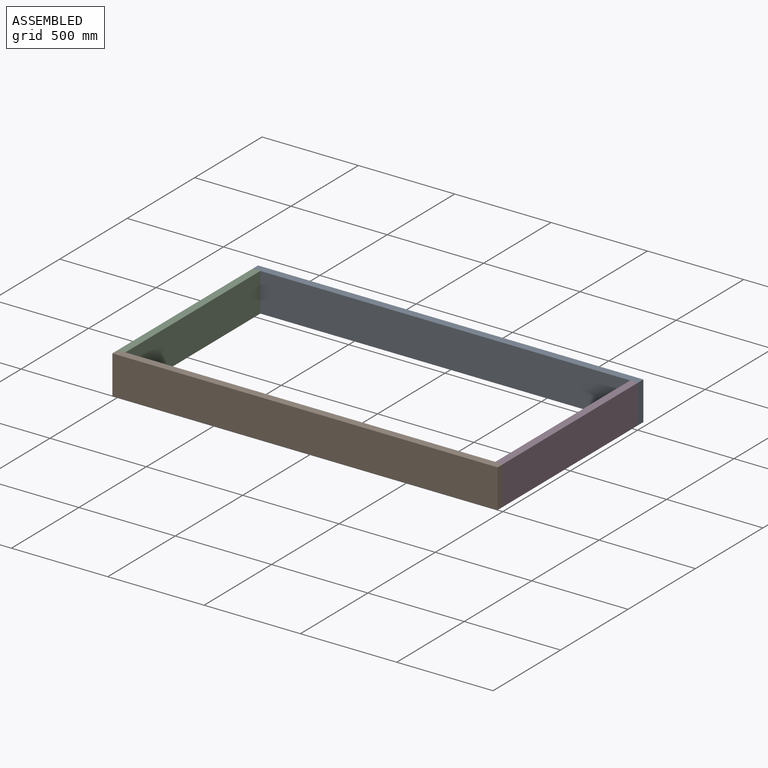
[diagram: assembled view]
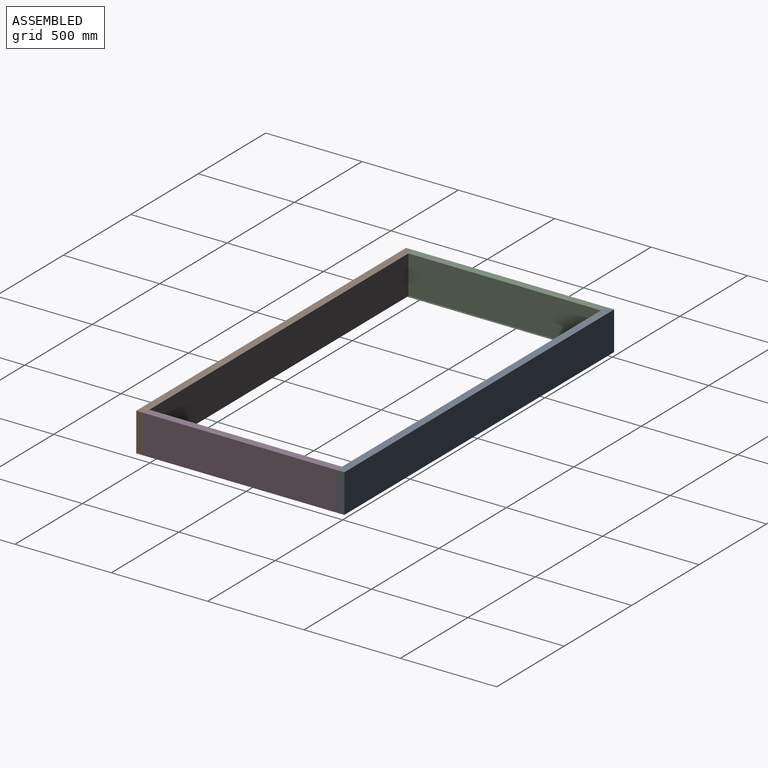
[diagram: assembled view, second angle]
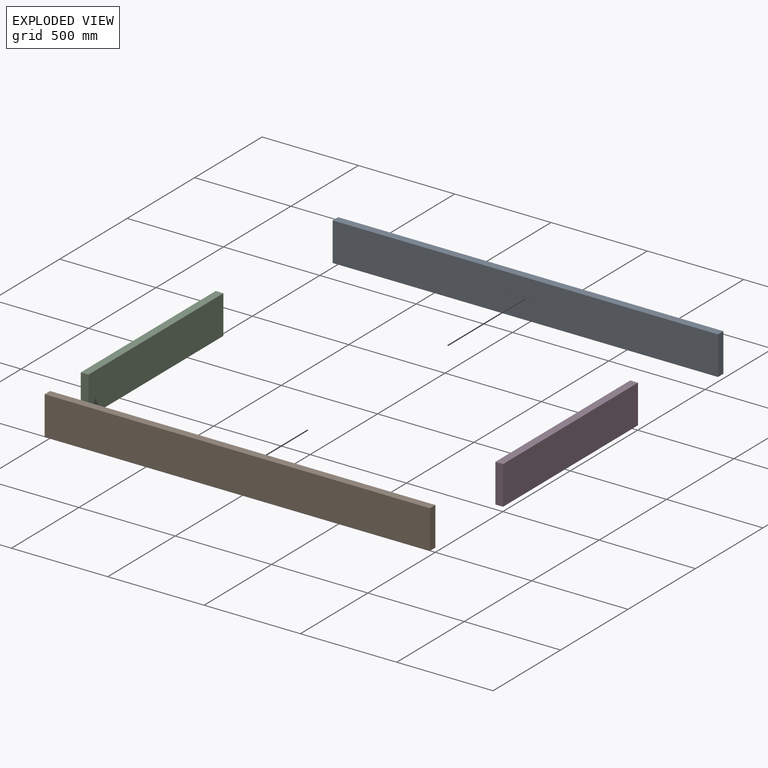
[diagram: exploded view]
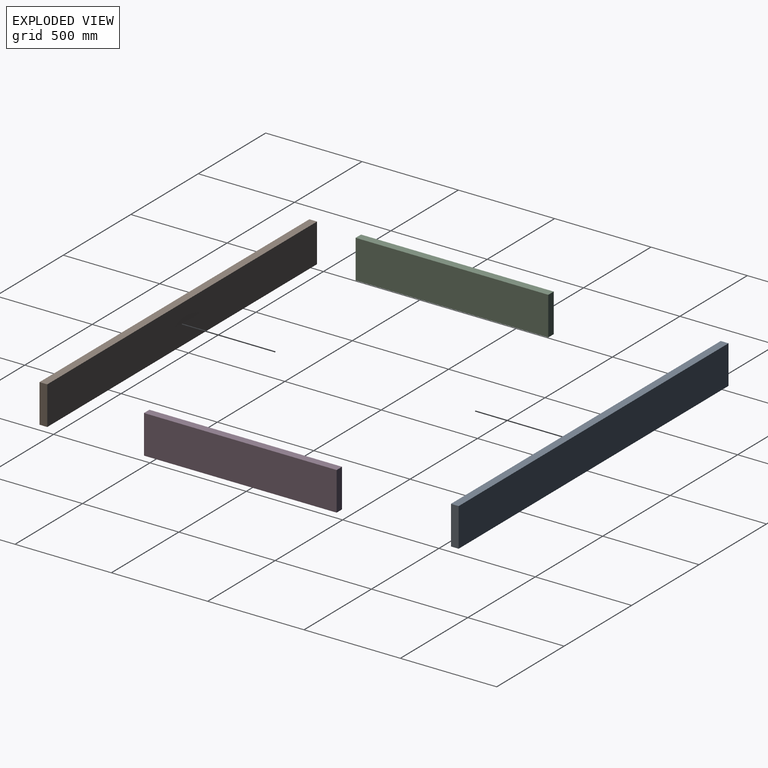
[diagram: exploded view, second angle]
ASSEMBLY  parts=4 mates=3
PART A: 6 faces, bbox 2000x40x200 mm
  f0: plane 2000x40mm, normal (0,0,1), area 80000mm2, adj f1,f3,f4,f5
  f1: plane 200x40mm, normal (-1,0,0), area 8000mm2, adj f0,f2,f4,f5
  f2: plane 2000x40mm, normal (0,0,-1), area 80000mm2, adj f1,f3,f4,f5
  f3: plane 200x40mm, normal (1,0,0), area 8000mm2, adj f0,f2,f4,f5
  f4: plane 2000x200mm, normal (0,-1,0), area 400000mm2, adj f0,f1,f2,f3
  f5: plane 2000x200mm, normal (0,1,0), area 400000mm2, adj f0,f1,f2,f3
PART B: same geometry as A
PART C: 6 faces, bbox 1000x40x200 mm
  f0: plane 1000x40mm, normal (0,0,1), area 40000mm2, adj f1,f3,f4,f5
  f1: plane 200x40mm, normal (-1,0,0), area 8000mm2, adj f0,f2,f4,f5
  f2: plane 1000x40mm, normal (0,0,-1), area 40000mm2, adj f1,f3,f4,f5
  f3: plane 200x40mm, normal (1,0,0), area 8000mm2, adj f0,f2,f4,f5
  f4: plane 1000x200mm, normal (0,-1,0), area 200000mm2, adj f0,f1,f2,f3
  f5: plane 1000x200mm, normal (0,1,0), area 200000mm2, adj f0,f1,f2,f3
PART D: same geometry as C
PLACE A t=(7.39,0,-30.32)mm
PLACE B rot(axis=(1,0,0),180deg) t=(7.39,-1040,-176.03)mm
PLACE C rot(axis=(0,0,-1),90deg) t=(-964.47,-519.55,-102.48)mm
PLACE D rot(axis=(0.71,0.71,0),180deg) t=(995.53,-520.45,-103.87)mm
MATE parallel D.f3 <-> A.f4  axis (0,1,0) through (995.53,-20,-103.18)mm
MATE parallel C.f1 <-> A.f4  axis (0,1,0) through (-964.47,-20,-103.18)mm
MATE parallel B.f4 <-> C.f3  axis (0,1,0) through (-964.47,-1020,-103.18)mm
